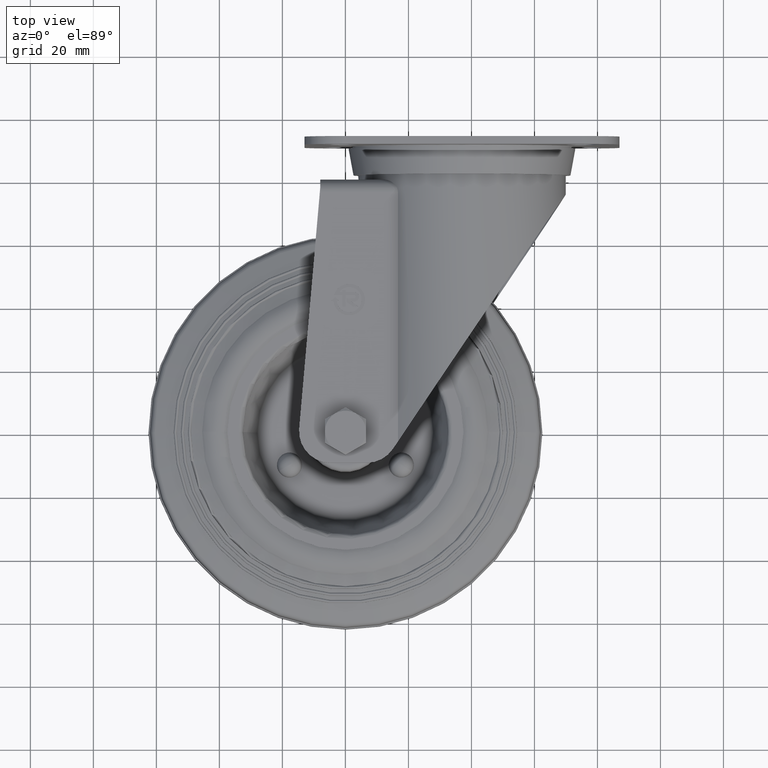
[diagram: clean part render]
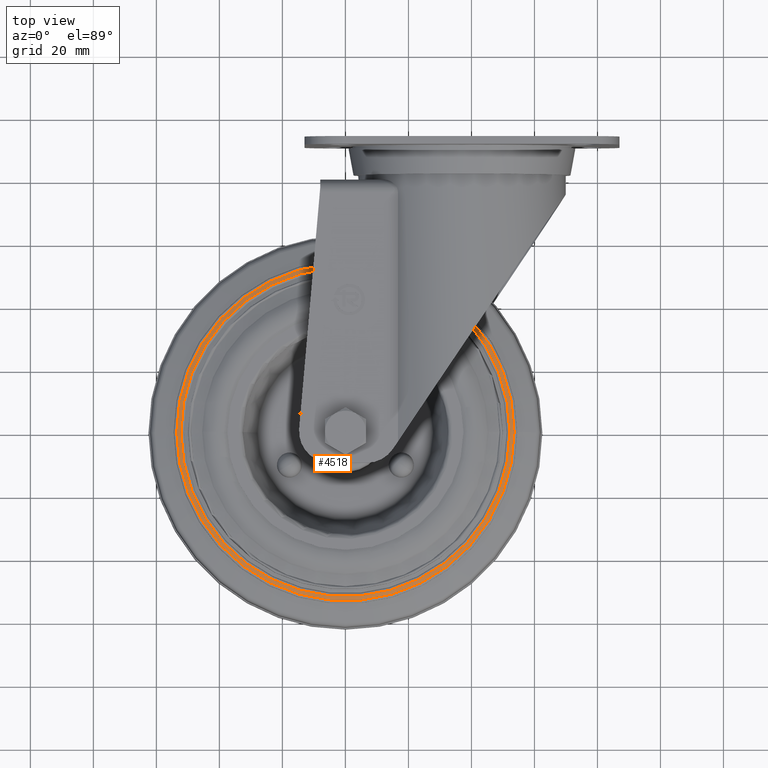
[diagram: same view with one face highlighted and labeled with its STEP entity id]
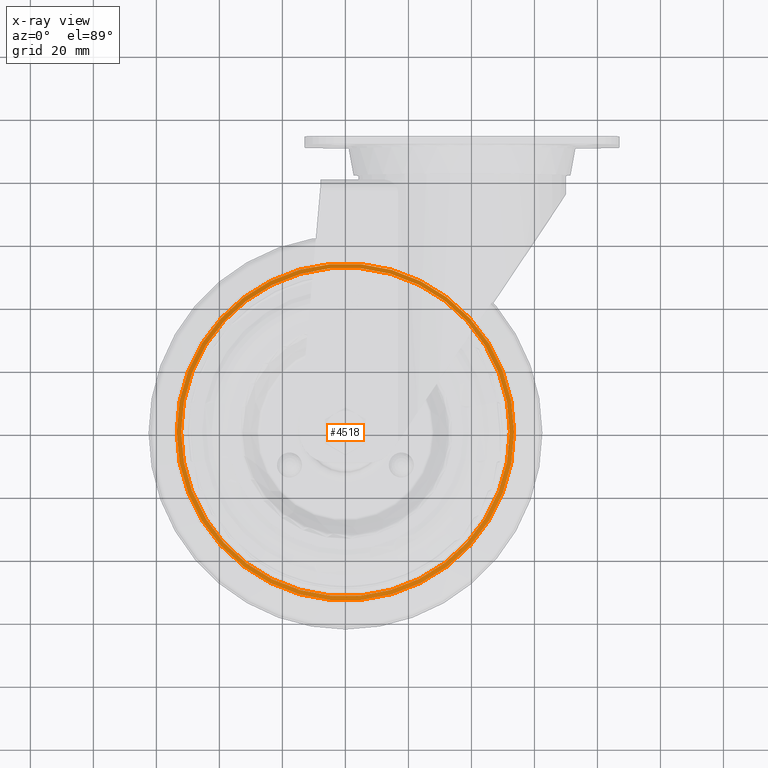
[diagram: x-ray of the same camera — body ghosted, the highlighted face saturated]
A machine part, top view. The second image highlights one B-rep face of the part: STEP entity #4518.
The next image is the same camera in x-ray: the body ghosted, the highlighted face saturated — about 0% of this face is hidden behind the body in this view.
In plain terms, the highlighted conical surface has half-angle 71 deg.
Its self-contained STEP definition (entity closure, byte-faithful):
#112=CONICAL_SURFACE('',#5039,52.2035147063613,1.23918376891597);
#352=CIRCLE('',#5036,53.5272407122003);
#353=CIRCLE('',#5037,53.5272407122003);
#355=CIRCLE('',#5040,52.2035147063613);
#356=CIRCLE('',#5041,52.2035147063613);
#559=FACE_OUTER_BOUND('',#844,.T.);
#844=EDGE_LOOP('',(#3075,#3076,#3077,#3078,#3079,#3080));
#1153=LINE('',#7125,#1504);
#1504=VECTOR('',#5759,52.2035147063613);
#1898=VERTEX_POINT('',#7118);
#1899=VERTEX_POINT('',#7119);
#1900=VERTEX_POINT('',#7124);
#1901=VERTEX_POINT('',#7126);
#2346=EDGE_CURVE('',#1898,#1899,#352,.T.);
#2347=EDGE_CURVE('',#1899,#1898,#353,.T.);
#2349=EDGE_CURVE('',#1898,#1900,#1153,.T.);
#2350=EDGE_CURVE('',#1901,#1900,#355,.T.);
#2351=EDGE_CURVE('',#1900,#1901,#356,.T.);
#3075=ORIENTED_EDGE('',*,*,#2346,.T.);
#3076=ORIENTED_EDGE('',*,*,#2347,.T.);
#3077=ORIENTED_EDGE('',*,*,#2349,.T.);
#3078=ORIENTED_EDGE('',*,*,#2350,.F.);
#3079=ORIENTED_EDGE('',*,*,#2351,.F.);
#3080=ORIENTED_EDGE('',*,*,#2349,.F.);
#4518=ADVANCED_FACE('',(#559),#112,.T.);
#5036=AXIS2_PLACEMENT_3D('',#7120,#5751,#5752);
#5037=AXIS2_PLACEMENT_3D('',#7121,#5753,#5754);
#5039=AXIS2_PLACEMENT_3D('',#7123,#5757,#5758);
#5040=AXIS2_PLACEMENT_3D('',#7127,#5760,#5761);
#5041=AXIS2_PLACEMENT_3D('',#7128,#5762,#5763);
#5751=DIRECTION('center_axis',(1.,0.,0.));
#5752=DIRECTION('ref_axis',(0.,0.,-1.));
#5753=DIRECTION('center_axis',(1.,0.,0.));
#5754=DIRECTION('ref_axis',(0.,0.,-1.));
#5757=DIRECTION('center_axis',(-1.,0.,0.));
#5758=DIRECTION('ref_axis',(0.,0.,1.));
#5759=DIRECTION('',(0.32556815445716,1.15792629714207E-16,0.945518575599316));
#5760=DIRECTION('center_axis',(1.,0.,0.));
#5761=DIRECTION('ref_axis',(0.,0.,-1.));
#5762=DIRECTION('center_axis',(1.,0.,0.));
#5763=DIRECTION('ref_axis',(0.,0.,-1.));
#7118=CARTESIAN_POINT('',(35.3395687901907,0.,-53.5272407122003));
#7119=CARTESIAN_POINT('',(35.3395687901907,-6.5551964005386E-15,53.5272407122003));
#7120=CARTESIAN_POINT('Origin',(35.3395687901907,0.,0.));
#7121=CARTESIAN_POINT('Origin',(35.3395687901907,0.,0.));
#7123=CARTESIAN_POINT('Origin',(35.7953642064308,0.,0.));
#7124=CARTESIAN_POINT('',(35.7953642064308,0.,-52.2035147063613));
#7125=CARTESIAN_POINT('',(35.7953642064308,-6.39308671893872E-15,-52.2035147063613));
#7126=CARTESIAN_POINT('',(35.7953642064308,-6.39308671893872E-15,52.2035147063613));
#7127=CARTESIAN_POINT('Origin',(35.7953642064308,0.,0.));
#7128=CARTESIAN_POINT('Origin',(35.7953642064308,0.,0.));